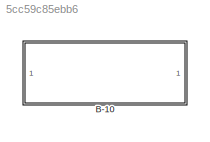
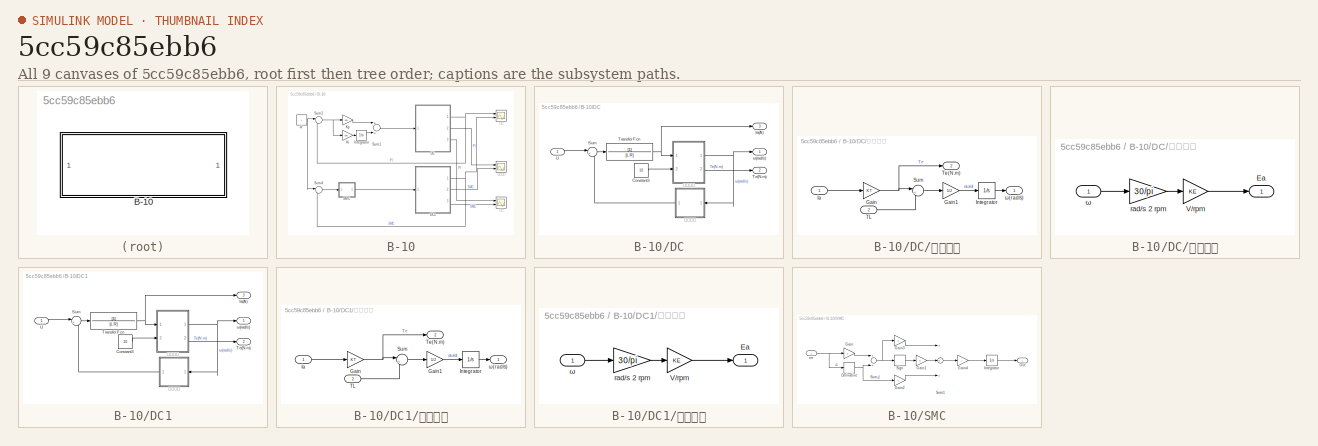
[diagram: thumbnail index - all 9 canvases of the model, root first then tree order]
MODEL slx_5cc59c85ebb6
KIND model
CONFIG AbsTol = auto
CONFIG EnableMultiTasking = off
CONFIG FixedStep = auto
CONFIG MaxStep = 1e-4
CONFIG MinStep = auto
CONFIG RelTol = 1e-6
CONFIG SampleTimeConstraint = Unconstrained
CONFIG Solver = VariableStepAuto
CONFIG SolverName = VariableStepAuto
CONFIG StartTime = 0.0
CONFIG StopFcn = %CELEC_plot;
CONFIG StopTime = 1
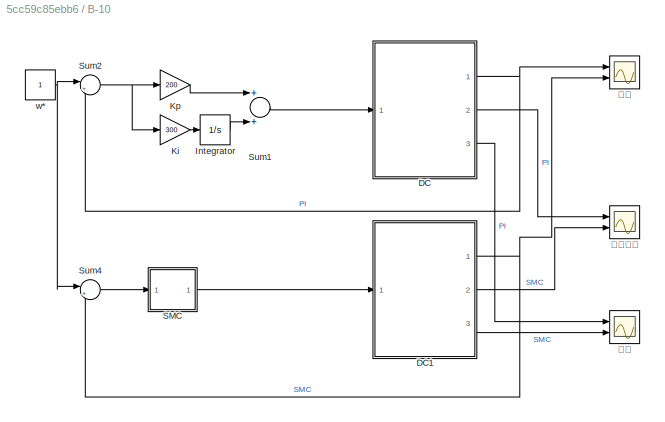
BLOCK [SubSystem] B-10
  Ports = []
  RequestExecContextInheritance = off
BLOCK [SubSystem] B-10/DC
  Ports = [1, 3]
  RequestExecContextInheritance = off
BLOCK [Constant] B-10/DC/Constant3
  Value = 10
BLOCK [Outport] B-10/DC/Ia(A)
  IconDisplay = Port number
  Port = 3
BLOCK [Sum] B-10/DC/Sum
  IconShape = round
  InputSameDT = off
  Inputs = |+-
  OutDataTypeStr = Inherit: Inherit via internal rule
  Ports = [2, 1]
  SaturateOnIntegerOverflow = off
BLOCK [Outport] B-10/DC/Te(N.m)
  IconDisplay = Port number
  Port = 2
BLOCK [TransferFcn] B-10/DC/Transfer Fcn
  Denominator = [L R]
BLOCK [Inport] B-10/DC/U
  IconDisplay = Port number
BLOCK [Outport] B-10/DC/ω(rad//s)
  IconDisplay = Port number
BLOCK [SubSystem] B-10/DC/机械方程
  Ports = [2, 2]
  RequestExecContextInheritance = off
BLOCK [Gain] B-10/DC/机械方程/Gain
  Gain = KT
  OutDataTypeStr = Inherit: Inherit via internal rule
  ParamDataTypeStr = Inherit: Inherit via internal rule
  SaturateOnIntegerOverflow = off
BLOCK [Gain] B-10/DC/机械方程/Gain1
  Gain = 1/J
  OutDataTypeStr = Inherit: Inherit via internal rule
  ParamDataTypeStr = Inherit: Inherit via internal rule
  SaturateOnIntegerOverflow = off
BLOCK [Inport] B-10/DC/机械方程/Ia
  IconDisplay = Port number
BLOCK [Integrator] B-10/DC/机械方程/Integrator
  Ports = [1, 1]
BLOCK [Sum] B-10/DC/机械方程/Sum
  IconShape = round
  InputSameDT = off
  Inputs = |+-
  OutDataTypeStr = Inherit: Inherit via internal rule
  Ports = [2, 1]
  SaturateOnIntegerOverflow = off
BLOCK [Inport] B-10/DC/机械方程/TL
  IconDisplay = Port number
  Port = 2
BLOCK [Outport] B-10/DC/机械方程/Te(N.m)
  IconDisplay = Port number
  Port = 2
BLOCK [Outport] B-10/DC/机械方程/ω(rad//s)
  IconDisplay = Port number
BLOCK [SubSystem] B-10/DC/电气方程
  Ports = [1, 1]
  RequestExecContextInheritance = off
BLOCK [Outport] B-10/DC/电气方程/Ea
  IconDisplay = Port number
BLOCK [Gain] B-10/DC/电气方程/V//rpm
  Gain = KE
  OutDataTypeStr = Inherit: Inherit via internal rule
  ParamDataTypeStr = Inherit: Inherit via internal rule
  SaturateOnIntegerOverflow = off
BLOCK [Gain] B-10/DC/电气方程/rad//s 2 rpm
  Gain = 30/pi
  OutDataTypeStr = Inherit: Inherit via internal rule
  ParamDataTypeStr = Inherit: Inherit via internal rule
  SaturateOnIntegerOverflow = off
BLOCK [Inport] B-10/DC/电气方程/ω
  IconDisplay = Port number
BLOCK [SubSystem] B-10/DC1
  Ports = [1, 3]
  RequestExecContextInheritance = off
BLOCK [Constant] B-10/DC1/Constant3
  Value = 10
BLOCK [Outport] B-10/DC1/Ia(A)
  IconDisplay = Port number
  Port = 3
BLOCK [Sum] B-10/DC1/Sum
  IconShape = round
  InputSameDT = off
  Inputs = |+-
  OutDataTypeStr = Inherit: Inherit via internal rule
  Ports = [2, 1]
  SaturateOnIntegerOverflow = off
BLOCK [Outport] B-10/DC1/Te(N.m)
  IconDisplay = Port number
  Port = 2
BLOCK [TransferFcn] B-10/DC1/Transfer Fcn
  Denominator = [L R]
BLOCK [Inport] B-10/DC1/U
  IconDisplay = Port number
BLOCK [Outport] B-10/DC1/ω(rad//s)
  IconDisplay = Port number
BLOCK [SubSystem] B-10/DC1/机械方程
  Ports = [2, 2]
  RequestExecContextInheritance = off
BLOCK [Gain] B-10/DC1/机械方程/Gain
  Gain = KT
  OutDataTypeStr = Inherit: Inherit via internal rule
  ParamDataTypeStr = Inherit: Inherit via internal rule
  SaturateOnIntegerOverflow = off
BLOCK [Gain] B-10/DC1/机械方程/Gain1
  Gain = 1/J
  OutDataTypeStr = Inherit: Inherit via internal rule
  ParamDataTypeStr = Inherit: Inherit via internal rule
  SaturateOnIntegerOverflow = off
BLOCK [Inport] B-10/DC1/机械方程/Ia
  IconDisplay = Port number
BLOCK [Integrator] B-10/DC1/机械方程/Integrator
  Ports = [1, 1]
BLOCK [Sum] B-10/DC1/机械方程/Sum
  IconShape = round
  InputSameDT = off
  Inputs = |+-
  OutDataTypeStr = Inherit: Inherit via internal rule
  Ports = [2, 1]
  SaturateOnIntegerOverflow = off
BLOCK [Inport] B-10/DC1/机械方程/TL
  IconDisplay = Port number
  Port = 2
BLOCK [Outport] B-10/DC1/机械方程/Te(N.m)
  IconDisplay = Port number
  Port = 2
BLOCK [Outport] B-10/DC1/机械方程/ω(rad//s)
  IconDisplay = Port number
BLOCK [SubSystem] B-10/DC1/电气方程
  Ports = [1, 1]
  RequestExecContextInheritance = off
BLOCK [Outport] B-10/DC1/电气方程/Ea
  IconDisplay = Port number
BLOCK [Gain] B-10/DC1/电气方程/V//rpm
  Gain = KE
  OutDataTypeStr = Inherit: Inherit via internal rule
  ParamDataTypeStr = Inherit: Inherit via internal rule
  SaturateOnIntegerOverflow = off
BLOCK [Gain] B-10/DC1/电气方程/rad//s 2 rpm
  Gain = 30/pi
  OutDataTypeStr = Inherit: Inherit via internal rule
  ParamDataTypeStr = Inherit: Inherit via internal rule
  SaturateOnIntegerOverflow = off
BLOCK [Inport] B-10/DC1/电气方程/ω
  IconDisplay = Port number
BLOCK [Integrator] B-10/Integrator
  Ports = [1, 1]
BLOCK [Gain] B-10/Ki
  Gain = 300
  OutDataTypeStr = Inherit: Inherit via internal rule
  ParamDataTypeStr = Inherit: Inherit via internal rule
  SaturateOnIntegerOverflow = off
BLOCK [Gain] B-10/Kp
  Gain = 200
  OutDataTypeStr = Inherit: Inherit via internal rule
  ParamDataTypeStr = Inherit: Inherit via internal rule
  SaturateOnIntegerOverflow = off
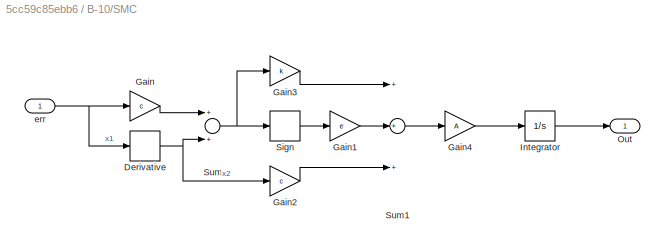
BLOCK [SubSystem] B-10/SMC
  Ports = [1, 1]
  RequestExecContextInheritance = off
BLOCK [Derivative] B-10/SMC/Derivative
BLOCK [Gain] B-10/SMC/Gain
  Gain = c
  OutDataTypeStr = Inherit: Inherit via internal rule
  ParamDataTypeStr = Inherit: Inherit via internal rule
  SaturateOnIntegerOverflow = off
BLOCK [Gain] B-10/SMC/Gain1
  Gain = e
  OutDataTypeStr = Inherit: Inherit via internal rule
  ParamDataTypeStr = Inherit: Inherit via internal rule
  SaturateOnIntegerOverflow = off
BLOCK [Gain] B-10/SMC/Gain2
  Gain = c
  OutDataTypeStr = Inherit: Inherit via internal rule
  ParamDataTypeStr = Inherit: Inherit via internal rule
  SaturateOnIntegerOverflow = off
BLOCK [Gain] B-10/SMC/Gain3
  Gain = k
  OutDataTypeStr = Inherit: Inherit via internal rule
  ParamDataTypeStr = Inherit: Inherit via internal rule
  SaturateOnIntegerOverflow = off
BLOCK [Gain] B-10/SMC/Gain4
  Gain = A
  OutDataTypeStr = Inherit: Inherit via internal rule
  ParamDataTypeStr = Inherit: Inherit via internal rule
  SaturateOnIntegerOverflow = off
BLOCK [Integrator] B-10/SMC/Integrator
  Ports = [1, 1]
BLOCK [Outport] B-10/SMC/Out
  IconDisplay = Port number
BLOCK [Signum] B-10/SMC/Sign
BLOCK [Sum] B-10/SMC/Sum
  InputSameDT = off
  OutDataTypeStr = Inherit: Inherit via internal rule
  Ports = [2, 1]
  SaturateOnIntegerOverflow = off
BLOCK [Sum] B-10/SMC/Sum1
  InputSameDT = off
  Inputs = +++
  OutDataTypeStr = Inherit: Inherit via internal rule
  Ports = [3, 1]
  SaturateOnIntegerOverflow = off
BLOCK [Inport] B-10/SMC/err
  IconDisplay = Port number
BLOCK [Sum] B-10/Sum1
  InputSameDT = off
  OutDataTypeStr = Inherit: Inherit via internal rule
  Ports = [2, 1]
  SaturateOnIntegerOverflow = off
BLOCK [Sum] B-10/Sum2
  IconShape = round
  InputSameDT = off
  Inputs = |+-
  OutDataTypeStr = Inherit: Inherit via internal rule
  Ports = [2, 1]
  SaturateOnIntegerOverflow = off
BLOCK [Sum] B-10/Sum4
  IconShape = round
  InputSameDT = off
  Inputs = |+-
  OutDataTypeStr = Inherit: Inherit via internal rule
  Ports = [2, 1]
  SaturateOnIntegerOverflow = off
BLOCK [Constant] B-10/w*
BLOCK [Scope] B-10/电流
  Floating = off
  NumInputPorts = 2
  Ports = [2]
  ScopeSpecificationString = Simulink.scopes.TimeScopeBlockCfg('CurrentConfiguration', extmgr.ConfigurationSet(extmgr.Configuration('Core','General UI',true),extmgr.Configuration('Core','Source UI',true),extmgr.Configuration('Sources','WiredSimulink',true,'DataLoggingVariableName','ScopeData1'),extmgr.Configuration('Visuals','Time Domain',true,'SerializedDisplays',{struct('MinYLimReal','-20.58398','MaxYLimReal','53.9504','YLa...<+1398ch>
BLOCK [Scope] B-10/电磁转矩
  Floating = off
  NumInputPorts = 2
  Ports = [2]
  ScopeSpecificationString = Simulink.scopes.TimeScopeBlockCfg('CurrentConfiguration', extmgr.ConfigurationSet(extmgr.Configuration('Core','General UI',true),extmgr.Configuration('Core','Source UI',true),extmgr.Configuration('Sources','WiredSimulink',true,'DataLoggingVariableName','ScopeData2'),extmgr.Configuration('Visuals','Time Domain',true,'SerializedDisplays',{struct('MinYLimReal','-354.04438','MaxYLimReal','927.94679','...<+1449ch>
BLOCK [Scope] B-10/转速
  Floating = off
  NumInputPorts = 2
  Ports = [2]
  ScopeSpecificationString = Simulink.scopes.TimeScopeBlockCfg('CurrentConfiguration', extmgr.ConfigurationSet(extmgr.Configuration('Core','General UI',true),extmgr.Configuration('Core','Source UI',true),extmgr.Configuration('Sources','WiredSimulink',true),extmgr.Configuration('Visuals','Time Domain',true,'SerializedDisplays',{struct('MinYLimReal','-0.15375','MaxYLimReal','1.37923','YLabelReal','','MinYLimMag','0.00000','MaxY...<+1449ch>
LINE B-10/DC/Constant3:1 -> B-10/DC/机械方程:2
LINE B-10/DC/Sum:1 -> B-10/DC/Transfer Fcn:1
NET B-10/DC/Transfer Fcn:1 -> B-10/DC/Ia(A):1, B-10/DC/机械方程:1
LINE B-10/DC/U:1 -> B-10/DC/Sum:1
LINE B-10/DC/机械方程/Gain1:1 -> B-10/DC/机械方程/Integrator:1
NET B-10/DC/机械方程/Gain:1 -> B-10/DC/机械方程/Sum:1, B-10/DC/机械方程/Te(N.m):1
LINE B-10/DC/机械方程/Ia:1 -> B-10/DC/机械方程/Gain:1
LINE B-10/DC/机械方程/Integrator:1 -> B-10/DC/机械方程/ω(rad//s):1
LINE B-10/DC/机械方程/Sum:1 -> B-10/DC/机械方程/Gain1:1
LINE B-10/DC/机械方程/TL:1 -> B-10/DC/机械方程/Sum:2
NET B-10/DC/机械方程:1 -> B-10/DC/ω(rad//s):1, B-10/DC/电气方程:1
LINE B-10/DC/机械方程:2 -> B-10/DC/Te(N.m):1
LINE B-10/DC/电气方程/V//rpm:1 -> B-10/DC/电气方程/Ea:1
LINE B-10/DC/电气方程/rad//s 2 rpm:1 -> B-10/DC/电气方程/V//rpm:1
LINE B-10/DC/电气方程/ω:1 -> B-10/DC/电气方程/rad//s 2 rpm:1
LINE B-10/DC/电气方程:1 -> B-10/DC/Sum:2
LINE B-10/DC1/Constant3:1 -> B-10/DC1/机械方程:2
LINE B-10/DC1/Sum:1 -> B-10/DC1/Transfer Fcn:1
NET B-10/DC1/Transfer Fcn:1 -> B-10/DC1/Ia(A):1, B-10/DC1/机械方程:1
LINE B-10/DC1/U:1 -> B-10/DC1/Sum:1
LINE B-10/DC1/机械方程/Gain1:1 -> B-10/DC1/机械方程/Integrator:1
NET B-10/DC1/机械方程/Gain:1 -> B-10/DC1/机械方程/Sum:1, B-10/DC1/机械方程/Te(N.m):1
LINE B-10/DC1/机械方程/Ia:1 -> B-10/DC1/机械方程/Gain:1
LINE B-10/DC1/机械方程/Integrator:1 -> B-10/DC1/机械方程/ω(rad//s):1
LINE B-10/DC1/机械方程/Sum:1 -> B-10/DC1/机械方程/Gain1:1
LINE B-10/DC1/机械方程/TL:1 -> B-10/DC1/机械方程/Sum:2
NET B-10/DC1/机械方程:1 -> B-10/DC1/ω(rad//s):1, B-10/DC1/电气方程:1
LINE B-10/DC1/机械方程:2 -> B-10/DC1/Te(N.m):1
LINE B-10/DC1/电气方程/V//rpm:1 -> B-10/DC1/电气方程/Ea:1
LINE B-10/DC1/电气方程/rad//s 2 rpm:1 -> B-10/DC1/电气方程/V//rpm:1
LINE B-10/DC1/电气方程/ω:1 -> B-10/DC1/电气方程/rad//s 2 rpm:1
LINE B-10/DC1/电气方程:1 -> B-10/DC1/Sum:2
NET B-10/DC1:1 -> B-10/Sum4:2, B-10/转速:2
LINE B-10/DC1:2 -> B-10/电磁转矩:2
LINE B-10/DC1:3 -> B-10/电流:2
NET B-10/DC:1 -> B-10/Sum2:2, B-10/转速:1
LINE B-10/DC:2 -> B-10/电磁转矩:1
LINE B-10/DC:3 -> B-10/电流:1
LINE B-10/Integrator:1 -> B-10/Sum1:2
LINE B-10/Ki:1 -> B-10/Integrator:1
LINE B-10/Kp:1 -> B-10/Sum1:1
NET B-10/SMC/Derivative:1 -> B-10/SMC/Gain2:1, B-10/SMC/Sum:2
LINE B-10/SMC/Gain1:1 -> B-10/SMC/Sum1:2
LINE B-10/SMC/Gain2:1 -> B-10/SMC/Sum1:3
LINE B-10/SMC/Gain3:1 -> B-10/SMC/Sum1:1
LINE B-10/SMC/Gain4:1 -> B-10/SMC/Integrator:1
LINE B-10/SMC/Gain:1 -> B-10/SMC/Sum:1
LINE B-10/SMC/Integrator:1 -> B-10/SMC/Out:1
LINE B-10/SMC/Sign:1 -> B-10/SMC/Gain1:1
LINE B-10/SMC/Sum1:1 -> B-10/SMC/Gain4:1
NET B-10/SMC/Sum:1 -> B-10/SMC/Gain3:1, B-10/SMC/Sign:1
NET B-10/SMC/err:1 -> B-10/SMC/Derivative:1, B-10/SMC/Gain:1
LINE B-10/SMC:1 -> B-10/DC1:1
LINE B-10/Sum1:1 -> B-10/DC:1
NET B-10/Sum2:1 -> B-10/Ki:1, B-10/Kp:1
LINE B-10/Sum4:1 -> B-10/SMC:1
NET B-10/w*:1 -> B-10/Sum2:1, B-10/Sum4:1
note: NET lines group one-source signal fan-out (src -> all destinations, sorted); 1:1 wires keep LINE
